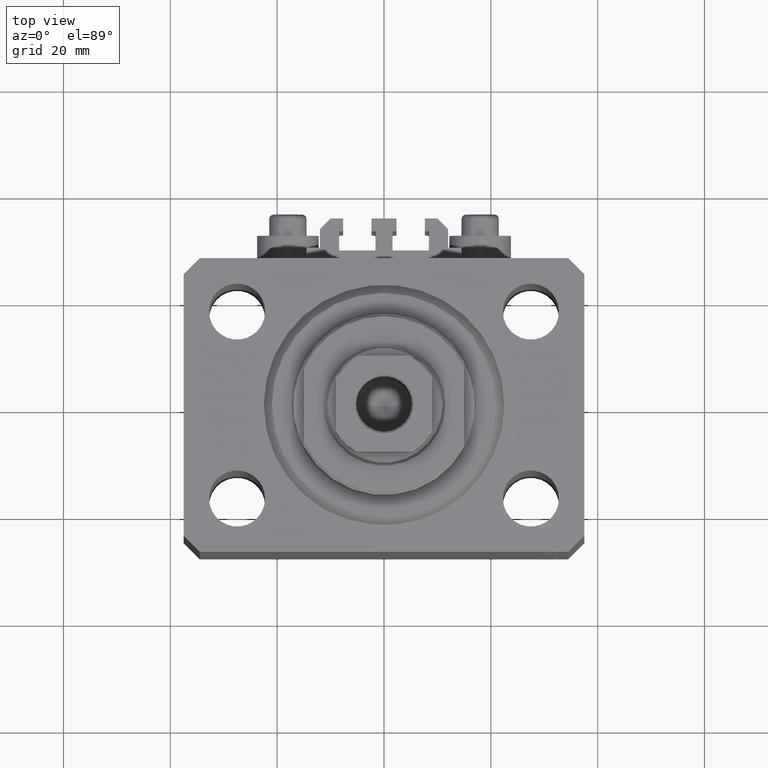
[diagram: clean part render]
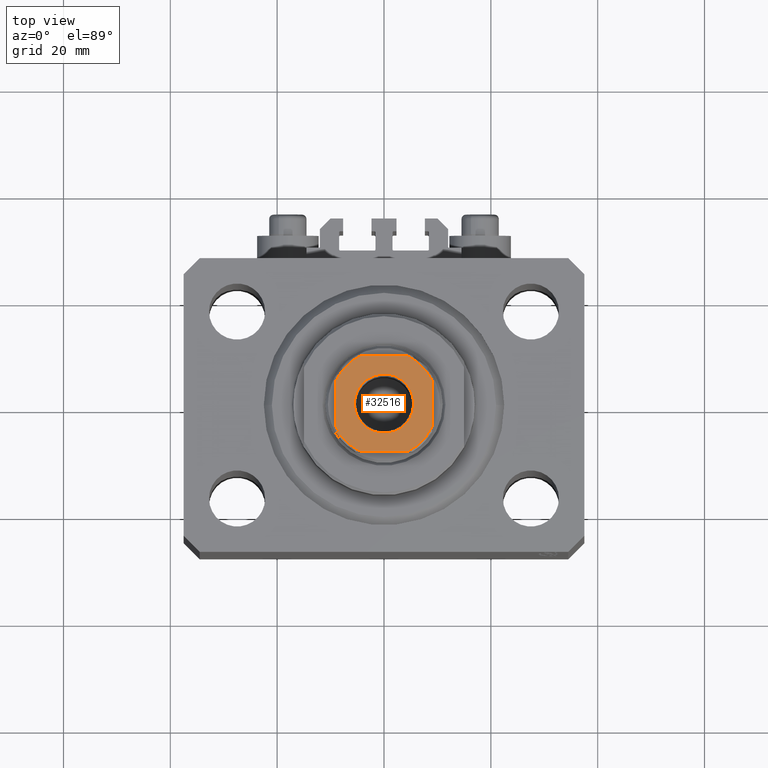
[diagram: same view with one face highlighted and labeled with its STEP entity id]
A machine part, top view. The second image highlights one B-rep face of the part: STEP entity #32516.
In plain terms, the highlighted planar face has unit normal (0, 0, 1).
Its self-contained STEP definition (entity closure, byte-faithful):
#871 = DIRECTION ( 'NONE',  ( -9.637352644315595243E-17, 1.000000000000000000, -0.000000000000000000 ) ) ;
#1246 = VECTOR ( 'NONE', #24947, 1000.000000000000000 ) ;
#1320 = DIRECTION ( 'NONE',  ( -0.000000000000000000, 0.000000000000000000, 1.000000000000000000 ) ) ;
#1348 = AXIS2_PLACEMENT_3D ( 'NONE', #16811, #23326, #45382 ) ;
#1571 = CARTESIAN_POINT ( 'NONE',  ( 9.000000000000000000, 8.999999999999998224, 85.10000000000000853 ) ) ;
#1766 = CARTESIAN_POINT ( 'NONE',  ( 0.000000000000000000, 0.000000000000000000, 85.10000000000000853 ) ) ;
#2810 = EDGE_CURVE ( 'NONE', #41427, #27884, #24237, .T. ) ;
#3361 = CARTESIAN_POINT ( 'NONE',  ( 5.549999999999985612, 0.000000000000000000, 85.10000000000000853 ) ) ;
#3384 = EDGE_LOOP ( 'NONE', ( #3867, #25655, #46895, #17505, #16591, #28904, #31123, #19693 ) ) ;
#3702 = CARTESIAN_POINT ( 'NONE',  ( -9.000000000000000000, 8.999999999999998224, 85.10000000000000853 ) ) ;
#3867 = ORIENTED_EDGE ( 'NONE', *, *, #14605, .T. ) ;
#3941 = LINE ( 'NONE', #3702, #31767 ) ;
#7257 = CIRCLE ( 'NONE', #27970, 5.549999999999985612 ) ;
#7275 = CARTESIAN_POINT ( 'NONE',  ( -4.358898943540671311, -9.000000000000001776, 85.10000000000000853 ) ) ;
#7298 = VERTEX_POINT ( 'NONE', #37963 ) ;
#9664 = AXIS2_PLACEMENT_3D ( 'NONE', #17804, #39632, #13975 ) ;
#9673 = EDGE_CURVE ( 'NONE', #27884, #40126, #34459, .T. ) ;
#9777 = EDGE_CURVE ( 'NONE', #38498, #16457, #39034, .T. ) ;
#10877 = ORIENTED_EDGE ( 'NONE', *, *, #9777, .T. ) ;
#11119 = DIRECTION ( 'NONE',  ( 1.000000000000000000, 0.000000000000000000, 0.000000000000000000 ) ) ;
#11678 = FACE_OUTER_BOUND ( 'NONE', #3384, .T. ) ;
#11972 = CARTESIAN_POINT ( 'NONE',  ( 4.358898943540671311, -9.000000000000001776, 85.10000000000000853 ) ) ;
#12392 = PLANE ( 'NONE',  #19132 ) ;
#12407 = EDGE_CURVE ( 'NONE', #15129, #40110, #43491, .T. ) ;
#13246 = DIRECTION ( 'NONE',  ( 1.000000000000000000, 0.000000000000000000, 0.000000000000000000 ) ) ;
#13309 = EDGE_CURVE ( 'NONE', #19311, #30997, #25826, .T. ) ;
#13667 = CARTESIAN_POINT ( 'NONE',  ( -9.000000000000000000, 8.999999999999998224, 85.10000000000000853 ) ) ;
#13777 = AXIS2_PLACEMENT_3D ( 'NONE', #14727, #29365, #11119 ) ;
#13975 = DIRECTION ( 'NONE',  ( 1.000000000000000000, 0.000000000000000000, 0.000000000000000000 ) ) ;
#14605 = EDGE_CURVE ( 'NONE', #40126, #15129, #3941, .T. ) ;
#14727 = CARTESIAN_POINT ( 'NONE',  ( 0.000000000000000000, 0.000000000000000000, 85.10000000000000853 ) ) ;
#15129 = VERTEX_POINT ( 'NONE', #47517 ) ;
#15436 = EDGE_CURVE ( 'NONE', #16457, #38498, #7257, .T. ) ;
#15903 = CARTESIAN_POINT ( 'NONE',  ( 0.000000000000000000, 0.000000000000000000, 85.10000000000000853 ) ) ;
#16031 = CARTESIAN_POINT ( 'NONE',  ( -5.549999999999985612, 6.796789735267793031E-16, 85.10000000000000853 ) ) ;
#16225 = DIRECTION ( 'NONE',  ( 1.000000000000000000, 0.000000000000000000, 0.000000000000000000 ) ) ;
#16457 = VERTEX_POINT ( 'NONE', #16031 ) ;
#16591 = ORIENTED_EDGE ( 'NONE', *, *, #21221, .T. ) ;
#16811 = CARTESIAN_POINT ( 'NONE',  ( 0.000000000000000000, 0.000000000000000000, 85.10000000000000853 ) ) ;
#16823 = DIRECTION ( 'NONE',  ( -0.000000000000000000, 0.000000000000000000, 1.000000000000000000 ) ) ;
#17505 = ORIENTED_EDGE ( 'NONE', *, *, #13309, .T. ) ;
#17804 = CARTESIAN_POINT ( 'NONE',  ( 0.000000000000000000, 0.000000000000000000, 85.10000000000000853 ) ) ;
#19132 = AXIS2_PLACEMENT_3D ( 'NONE', #44778, #1320, #16225 ) ;
#19311 = VERTEX_POINT ( 'NONE', #11972 ) ;
#19350 = FACE_BOUND ( 'NONE', #31380, .T. ) ;
#19512 = CARTESIAN_POINT ( 'NONE',  ( -4.358898943540678417, 8.999999999999998224, 85.10000000000000853 ) ) ;
#19693 = ORIENTED_EDGE ( 'NONE', *, *, #9673, .T. ) ;
#19703 = EDGE_CURVE ( 'NONE', #7298, #41427, #32652, .T. ) ;
#19899 = AXIS2_PLACEMENT_3D ( 'NONE', #39148, #28350, #13246 ) ;
#21221 = EDGE_CURVE ( 'NONE', #30997, #7298, #44558, .T. ) ;
#23255 = ORIENTED_EDGE ( 'NONE', *, *, #15436, .T. ) ;
#23326 = DIRECTION ( 'NONE',  ( -0.000000000000000000, 0.000000000000000000, 1.000000000000000000 ) ) ;
#23909 = CARTESIAN_POINT ( 'NONE',  ( 9.000000000000001776, -4.358898943540675752, 85.10000000000000853 ) ) ;
#24237 = LINE ( 'NONE', #13667, #1246 ) ;
#24947 = DIRECTION ( 'NONE',  ( -1.000000000000000000, -0.000000000000000000, -0.000000000000000000 ) ) ;
#25655 = ORIENTED_EDGE ( 'NONE', *, *, #12407, .T. ) ;
#25826 = CIRCLE ( 'NONE', #30418, 10.00000000000000000 ) ;
#27171 = DIRECTION ( 'NONE',  ( 1.000000000000000000, 0.000000000000000000, 0.000000000000000000 ) ) ;
#27884 = VERTEX_POINT ( 'NONE', #19512 ) ;
#27970 = AXIS2_PLACEMENT_3D ( 'NONE', #1766, #34674, #44519 ) ;
#28350 = DIRECTION ( 'NONE',  ( 0.000000000000000000, -0.000000000000000000, -1.000000000000000000 ) ) ;
#28904 = ORIENTED_EDGE ( 'NONE', *, *, #19703, .T. ) ;
#29161 = DIRECTION ( 'NONE',  ( 1.000000000000000000, 0.000000000000000000, 0.000000000000000000 ) ) ;
#29365 = DIRECTION ( 'NONE',  ( -0.000000000000000000, 0.000000000000000000, 1.000000000000000000 ) ) ;
#30418 = AXIS2_PLACEMENT_3D ( 'NONE', #15903, #16823, #27171 ) ;
#30997 = VERTEX_POINT ( 'NONE', #23909 ) ;
#31123 = ORIENTED_EDGE ( 'NONE', *, *, #2810, .T. ) ;
#31380 = EDGE_LOOP ( 'NONE', ( #10877, #23255 ) ) ;
#31767 = VECTOR ( 'NONE', #46918, 1000.000000000000000 ) ;
#32516 = ADVANCED_FACE ( 'NONE', ( #19350, #11678 ), #12392, .T. ) ;
#32652 = CIRCLE ( 'NONE', #9664, 10.00000000000000000 ) ;
#34459 = CIRCLE ( 'NONE', #13777, 10.00000000000000000 ) ;
#34674 = DIRECTION ( 'NONE',  ( 0.000000000000000000, -0.000000000000000000, -1.000000000000000000 ) ) ;
#35181 = CARTESIAN_POINT ( 'NONE',  ( 4.358898943540677529, 8.999999999999998224, 85.10000000000000853 ) ) ;
#36104 = CARTESIAN_POINT ( 'NONE',  ( -9.000000000000000000, 4.358898943540674864, 85.10000000000000853 ) ) ;
#36373 = EDGE_CURVE ( 'NONE', #40110, #19311, #43780, .T. ) ;
#37963 = CARTESIAN_POINT ( 'NONE',  ( 9.000000000000000000, 4.358898943540675752, 85.10000000000000853 ) ) ;
#38354 = CARTESIAN_POINT ( 'NONE',  ( -8.999999999999998224, -9.000000000000001776, 85.10000000000000853 ) ) ;
#38498 = VERTEX_POINT ( 'NONE', #3361 ) ;
#39034 = CIRCLE ( 'NONE', #19899, 5.549999999999985612 ) ;
#39148 = CARTESIAN_POINT ( 'NONE',  ( 0.000000000000000000, 0.000000000000000000, 85.10000000000000853 ) ) ;
#39632 = DIRECTION ( 'NONE',  ( -0.000000000000000000, 0.000000000000000000, 1.000000000000000000 ) ) ;
#40110 = VERTEX_POINT ( 'NONE', #7275 ) ;
#40126 = VERTEX_POINT ( 'NONE', #36104 ) ;
#41427 = VERTEX_POINT ( 'NONE', #35181 ) ;
#41762 = VECTOR ( 'NONE', #871, 1000.000000000000000 ) ;
#42097 = VECTOR ( 'NONE', #29161, 1000.000000000000000 ) ;
#43491 = CIRCLE ( 'NONE', #1348, 10.00000000000000000 ) ;
#43780 = LINE ( 'NONE', #38354, #42097 ) ;
#44519 = DIRECTION ( 'NONE',  ( 1.000000000000000000, 0.000000000000000000, 0.000000000000000000 ) ) ;
#44558 = LINE ( 'NONE', #1571, #41762 ) ;
#44778 = CARTESIAN_POINT ( 'NONE',  ( 0.000000000000000000, 0.000000000000000000, 85.10000000000000853 ) ) ;
#45382 = DIRECTION ( 'NONE',  ( 1.000000000000000000, 0.000000000000000000, 0.000000000000000000 ) ) ;
#46895 = ORIENTED_EDGE ( 'NONE', *, *, #36373, .T. ) ;
#46918 = DIRECTION ( 'NONE',  ( 9.637352644315595243E-17, -1.000000000000000000, 0.000000000000000000 ) ) ;
#47517 = CARTESIAN_POINT ( 'NONE',  ( -9.000000000000000000, -4.358898943540675752, 85.10000000000000853 ) ) ;